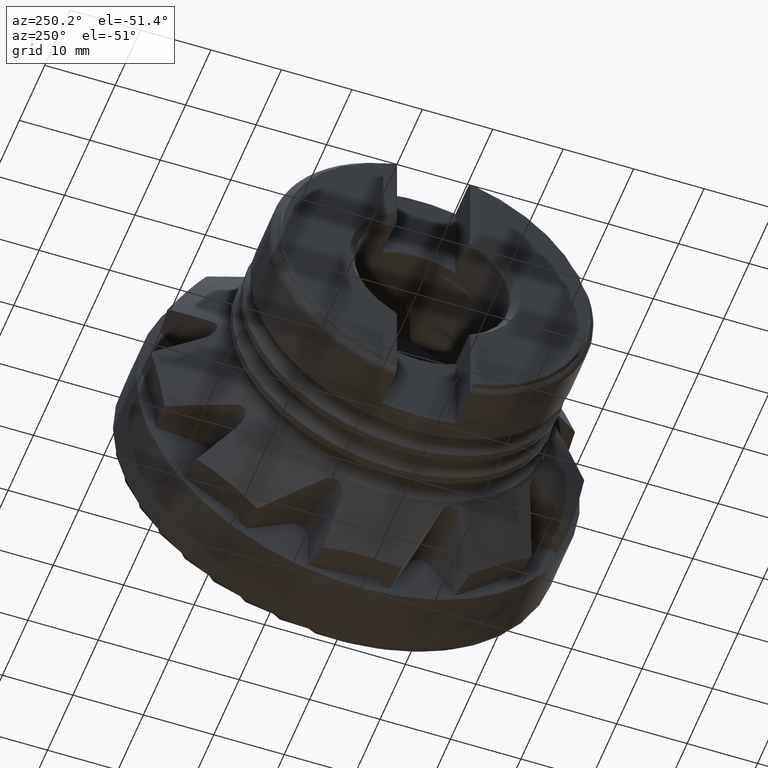
[diagram: clean part render]
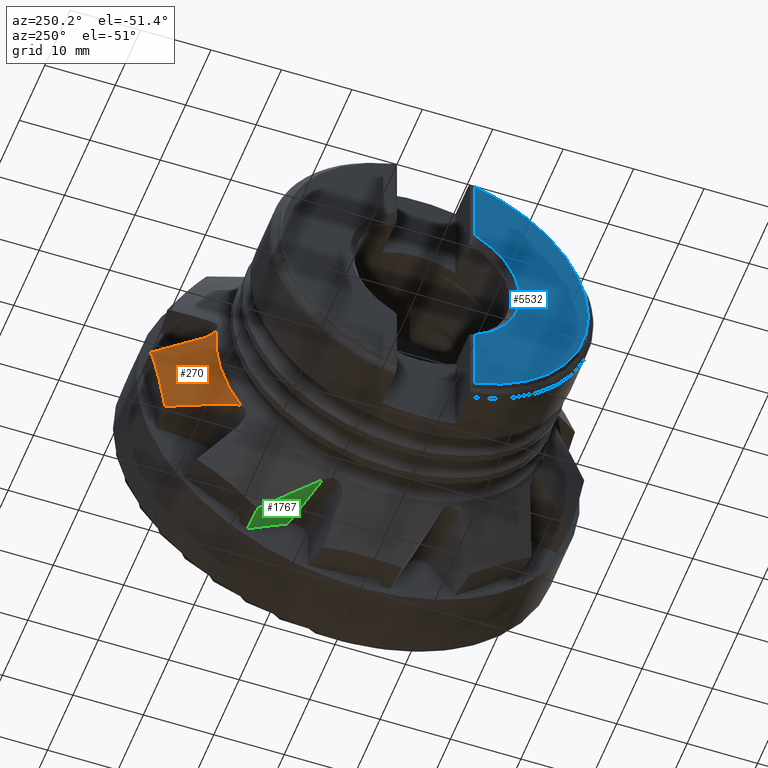
[diagram: same view with three faces highlighted in distinct colors, each labeled with its STEP entity id]
A machine part, auxiliary view with three faces highlighted in distinct colors.
Their STEP definitions:

[orange] entity #270 — the highlighted conical surface has half-angle 51.154 deg.
#114 = EDGE_CURVE ( 'NONE', #5348, #7015, #6651, .T. ) ;
#270 = ADVANCED_FACE ( 'NONE', ( #7688 ), #2080, .T. ) ;
#311 = CARTESIAN_POINT ( 'NONE',  ( -17.66959787476908500, 25.17829734405208000, 1.086551063214550100 ) ) ;
#324 = CARTESIAN_POINT ( 'NONE',  ( -14.61931886738449300, 28.96937569714186400, 1.076440430522797500 ) ) ;
#422 = CARTESIAN_POINT ( 'NONE',  ( -13.32014907429244100, 28.93695753550316900, -9.958091725751756900 ) ) ;
#576 = CARTESIAN_POINT ( 'NONE',  ( -18.84233078654614600, 20.09603200835191600, -12.64911970498729800 ) ) ;
#1154 = CARTESIAN_POINT ( 'NONE',  ( -17.66959787476908500, 25.17829734405208000, 1.086551063214550100 ) ) ;
#1384 = VERTEX_POINT ( 'NONE', #1387 ) ;
#1387 = CARTESIAN_POINT ( 'NONE',  ( -13.09395926139060700, 30.86473796035537000, 1.071463814680444500 ) ) ;
#1642 = CARTESIAN_POINT ( 'NONE',  ( -17.90058668098720000, 24.89052036032299100, 1.102926459477871400 ) ) ;
#1653 = CARTESIAN_POINT ( 'NONE',  ( -16.14456512270328800, 27.07392229764525700, 1.081457581260529600 ) ) ;
#1694 = CARTESIAN_POINT ( 'NONE',  ( -15.07512766053103800, 26.35042458129994700, -10.69062361715937800 ) ) ;
#1734 = B_SPLINE_CURVE_WITH_KNOTS ( 'NONE', 3,
 ( #5040, #324, #1653, #6385 ),
 .UNSPECIFIED., .F., .F.,
 ( 4, 4 ),
 ( 0.0001501825883151993500, 0.007448970379999481600 ),
 .UNSPECIFIED. ) ;
#1797 = CARTESIAN_POINT ( 'NONE',  ( -13.63573403927999200, 29.60809697731799900, -6.286606636422906300 ) ) ;
#1829 = CARTESIAN_POINT ( 'NONE',  ( -17.59482338654538900, 22.39917514444965700, -11.79324846321752300 ) ) ;
#2080 = CONICAL_SURFACE ( 'NONE', #3368, 30.99999999999995000, 0.8928056660857351900 ) ;
#2319 = CARTESIAN_POINT ( 'NONE',  ( -18.23954043297004200, 24.46352219300587200, 1.224791792716329400 ) ) ;
#2475 = CARTESIAN_POINT ( 'NONE',  ( -13.38889592127873800, 30.56222246018877800, -0.7701070809268794100 ) ) ;
#2555 = EDGE_CURVE ( 'NONE', #7015, #1384, #2748, .T. ) ;
#2748 = B_SPLINE_CURVE_WITH_KNOTS ( 'NONE', 3,
 ( #422, #8385, #1797, #6524, #2475, #7200 ),
 .UNSPECIFIED., .F., .F.,
 ( 4, 2, 4 ),
 ( 0.002204214959745007800, 0.007802588642851985200, 0.01340096232595896400 ),
 .UNSPECIFIED. ) ;
#2998 = CARTESIAN_POINT ( 'NONE',  ( -18.54787442368044700, 24.06670434245051400, 1.469061245818401100 ) ) ;
#3022 = DIRECTION ( 'NONE',  ( 1.000000000000000000, -0.0000000000000000000, -0.0000000000000000000 ) ) ;
#3228 = DIRECTION ( 'NONE',  ( 1.000000000000000000, -0.0000000000000000000, -0.0000000000000000000 ) ) ;
#3254 = DIRECTION ( 'NONE',  ( 0.0000000000000000000, 0.0000000000000000000, -1.000000000000000000 ) ) ;
#3368 = AXIS2_PLACEMENT_3D ( 'NONE', #7425, #3228, #3254 ) ;
#3400 = CARTESIAN_POINT ( 'NONE',  ( -18.79405007719356000, 20.24226921103871400, -12.52933023008295900 ) ) ;
#3424 = CARTESIAN_POINT ( 'NONE',  ( -18.57182344745039200, 20.72219626054023700, -12.26901575130061800 ) ) ;
#3668 = CARTESIAN_POINT ( 'NONE',  ( -18.79117833417380000, 23.73768188386161200, 1.849969901237294300 ) ) ;
#3846 = EDGE_CURVE ( 'NONE', #6656, #5348, #7749, .T. ) ;
#3964 = ORIENTED_EDGE ( 'NONE', *, *, #5759, .F. ) ;
#4108 = CARTESIAN_POINT ( 'NONE',  ( -18.38603016533242900, 21.05124192609381600, -12.16244247178529700 ) ) ;
#4123 = VERTEX_POINT ( 'NONE', #1154 ) ;
#4331 = CARTESIAN_POINT ( 'NONE',  ( -17.78568048082444600, 25.03400596118268600, 1.086938769418447600 ) ) ;
#4603 = CARTESIAN_POINT ( 'NONE',  ( -13.32014907429244100, 28.93695753550316900, -9.958091725751756900 ) ) ;
#4773 = EDGE_CURVE ( 'NONE', #6656, #7406, #7458, .T. ) ;
#4779 = ORIENTED_EDGE ( 'NONE', *, *, #114, .F. ) ;
#4883 = ORIENTED_EDGE ( 'NONE', *, *, #4773, .T. ) ;
#5013 = CARTESIAN_POINT ( 'NONE',  ( -13.32014907429244100, 28.93695753550316900, -9.958091725751756900 ) ) ;
#5040 = CARTESIAN_POINT ( 'NONE',  ( -13.09395926139060700, 30.86473796035537000, 1.071463814680444500 ) ) ;
#5108 = CARTESIAN_POINT ( 'NONE',  ( -18.84233078654615000, 23.66002862131616900, 2.013399471119087500 ) ) ;
#5144 = CARTESIAN_POINT ( 'NONE',  ( -16.76977452680699400, 23.72566674978357100, -11.42520291145168600 ) ) ;
#5348 = VERTEX_POINT ( 'NONE', #5741 ) ;
#5408 = ORIENTED_EDGE ( 'NONE', *, *, #2555, .F. ) ;
#5741 = CARTESIAN_POINT ( 'NONE',  ( -18.38603016533242900, 21.05124192609381600, -12.16244247178529700 ) ) ;
#5759 = EDGE_CURVE ( 'NONE', #4123, #7406, #6280, .T. ) ;
#5934 = CARTESIAN_POINT ( 'NONE',  ( -18.38603016533242900, 21.05124192609381600, -12.16244247178529700 ) ) ;
#6280 = B_SPLINE_CURVE_WITH_KNOTS ( 'NONE', 3,
 ( #311, #4331, #1642, #6375, #2319, #7054, #2998, #7740, #3668, #8430 ),
 .UNSPECIFIED., .F., .F.,
 ( 4, 2, 2, 2, 4 ),
 ( 0.01151497346002702600, 0.01206763359340422300, 0.01262029372678142100, 0.01317295386015861900, 0.01372561399353581500 ),
 .UNSPECIFIED. ) ;
#6375 = CARTESIAN_POINT ( 'NONE',  ( -18.12748563373366300, 24.60532610653324100, 1.171584447610106700 ) ) ;
#6385 = CARTESIAN_POINT ( 'NONE',  ( -17.66959787476908500, 25.17829734405208000, 1.086551063214550100 ) ) ;
#6524 = CARTESIAN_POINT ( 'NONE',  ( -13.55920157120005200, 30.25060752168489800, -2.610073500046050700 ) ) ;
#6651 = B_SPLINE_CURVE_WITH_KNOTS ( 'NONE', 3,
 ( #5934, #1829, #5144, #1694, #7355, #4603 ),
 .UNSPECIFIED., .F., .F.,
 ( 4, 2, 4 ),
 ( 0.0003303918202217912900, 0.005144610480655122500, 0.009958829141088450600 ),
 .UNSPECIFIED. ) ;
#6656 = VERTEX_POINT ( 'NONE', #576 ) ;
#7015 = VERTEX_POINT ( 'NONE', #5013 ) ;
#7030 = EDGE_CURVE ( 'NONE', #1384, #4123, #1734, .T. ) ;
#7054 = CARTESIAN_POINT ( 'NONE',  ( -18.44837789783676700, 24.19595907227687800, 1.372411558822956000 ) ) ;
#7072 = CARTESIAN_POINT ( 'NONE',  ( -18.84233078654614200, 0.0000000000000000000, 0.0000000000000000000 ) ) ;
#7200 = CARTESIAN_POINT ( 'NONE',  ( -13.09395926139060700, 30.86473796035537000, 1.071463814680444500 ) ) ;
#7355 = CARTESIAN_POINT ( 'NONE',  ( -14.20535203976762300, 27.64857827493740700, -10.32409590210699500 ) ) ;
#7386 = ORIENTED_EDGE ( 'NONE', *, *, #7030, .F. ) ;
#7406 = VERTEX_POINT ( 'NONE', #5108 ) ;
#7425 = CARTESIAN_POINT ( 'NONE',  ( -13.00000000000000000, 0.0000000000000000000, 0.0000000000000000000 ) ) ;
#7458 = CIRCLE ( 'NONE', #8461, 23.74554130340690300 ) ;
#7492 = ORIENTED_EDGE ( 'NONE', *, *, #3846, .F. ) ;
#7495 = CARTESIAN_POINT ( 'NONE',  ( -18.72683881329496800, 20.40170099333007100, -12.42880737828696200 ) ) ;
#7675 = EDGE_LOOP ( 'NONE', ( #7386, #5408, #4779, #7492, #4883, #3964 ) ) ;
#7688 = FACE_OUTER_BOUND ( 'NONE', #7675, .T. ) ;
#7740 = CARTESIAN_POINT ( 'NONE',  ( -18.71849700317090600, 23.83862426965358900, 1.706675803835415100 ) ) ;
#7749 = B_SPLINE_CURVE_WITH_KNOTS ( 'NONE', 3,
 ( #8156, #3400, #7495, #3424, #8179, #4108 ),
 .UNSPECIFIED., .F., .F.,
 ( 4, 2, 4 ),
 ( -0.01095209666788698700, -0.01036745069465012600, -0.009782804721413266800 ),
 .UNSPECIFIED. ) ;
#7761 = DIRECTION ( 'NONE',  ( 0.0000000000000000000, 0.0000000000000000000, -1.000000000000000000 ) ) ;
#8156 = CARTESIAN_POINT ( 'NONE',  ( -18.84233078654614600, 20.09603200835191600, -12.64911970498729800 ) ) ;
#8179 = CARTESIAN_POINT ( 'NONE',  ( -18.48302703700021600, 20.88599396702305500, -12.20770328707349600 ) ) ;
#8385 = CARTESIAN_POINT ( 'NONE',  ( -13.54191057461453300, 29.27719770025421300, -8.123172706348846400 ) ) ;
#8430 = CARTESIAN_POINT ( 'NONE',  ( -18.84233078654615000, 23.66002862131616900, 2.013399471119087500 ) ) ;
#8461 = AXIS2_PLACEMENT_3D ( 'NONE', #7072, #3022, #7761 ) ;

[blue] entity #5532 — the highlighted planar face has unit normal (-1, 0, 0).
#138 = CARTESIAN_POINT ( 'NONE',  ( -39.39999999999999900, -5.699999999999975300, 10.64498121181998700 ) ) ;
#186 = VECTOR ( 'NONE', #2949, 1000.000000000000000 ) ;
#457 = EDGE_LOOP ( 'NONE', ( #1547, #4908, #5935, #8683 ) ) ;
#503 = CARTESIAN_POINT ( 'NONE',  ( -39.39999999999999900, 0.0000000000000000000, 0.0000000000000000000 ) ) ;
#577 = EDGE_CURVE ( 'NONE', #5394, #978, #7383, .T. ) ;
#621 = DIRECTION ( 'NONE',  ( -1.000000000000000000, 0.0000000000000000000, 0.0000000000000000000 ) ) ;
#782 = CARTESIAN_POINT ( 'NONE',  ( -39.39999999999999900, -5.699999999999976200, -21.16043714104224400 ) ) ;
#978 = VERTEX_POINT ( 'NONE', #2550 ) ;
#1002 = FACE_OUTER_BOUND ( 'NONE', #457, .T. ) ;
#1178 = DIRECTION ( 'NONE',  ( 0.0000000000000000000, 0.0000000000000000000, 1.000000000000000000 ) ) ;
#1547 = ORIENTED_EDGE ( 'NONE', *, *, #3381, .T. ) ;
#1749 = CARTESIAN_POINT ( 'NONE',  ( -39.39999999999999900, -5.699999999999976200, -10.64498121181998700 ) ) ;
#1768 = AXIS2_PLACEMENT_3D ( 'NONE', #7475, #3410, #8167 ) ;
#2140 = CIRCLE ( 'NONE', #1768, 21.78999999999999900 ) ;
#2550 = CARTESIAN_POINT ( 'NONE',  ( -39.39999999999999900, -5.699999999999974400, -21.03126482168869400 ) ) ;
#2606 = PLANE ( 'NONE',  #8753 ) ;
#2880 = AXIS2_PLACEMENT_3D ( 'NONE', #503, #5223, #1178 ) ;
#2949 = DIRECTION ( 'NONE',  ( 0.0000000000000000000, 0.0000000000000000000, -1.000000000000000000 ) ) ;
#2981 = CIRCLE ( 'NONE', #2880, 12.07500000000001000 ) ;
#3381 = EDGE_CURVE ( 'NONE', #5176, #5394, #2981, .T. ) ;
#3410 = DIRECTION ( 'NONE',  ( 1.000000000000000000, 1.110223024625157000E-016, -0.0000000000000000000 ) ) ;
#4232 = VERTEX_POINT ( 'NONE', #5990 ) ;
#4908 = ORIENTED_EDGE ( 'NONE', *, *, #577, .T. ) ;
#5023 = LINE ( 'NONE', #8472, #8641 ) ;
#5065 = DIRECTION ( 'NONE',  ( 0.0000000000000000000, 0.0000000000000000000, -1.000000000000000000 ) ) ;
#5176 = VERTEX_POINT ( 'NONE', #138 ) ;
#5223 = DIRECTION ( 'NONE',  ( 1.000000000000000000, -0.0000000000000000000, -0.0000000000000000000 ) ) ;
#5330 = DIRECTION ( 'NONE',  ( 0.0000000000000000000, 0.0000000000000000000, 1.000000000000000000 ) ) ;
#5366 = EDGE_CURVE ( 'NONE', #4232, #5176, #5023, .T. ) ;
#5394 = VERTEX_POINT ( 'NONE', #1749 ) ;
#5532 = ADVANCED_FACE ( 'NONE', ( #1002 ), #2606, .T. ) ;
#5647 = EDGE_CURVE ( 'NONE', #4232, #978, #2140, .T. ) ;
#5935 = ORIENTED_EDGE ( 'NONE', *, *, #5647, .F. ) ;
#5990 = CARTESIAN_POINT ( 'NONE',  ( -39.39999999999999900, -5.699999999999976200, 21.03126482168869400 ) ) ;
#7383 = LINE ( 'NONE', #782, #186 ) ;
#7475 = CARTESIAN_POINT ( 'NONE',  ( -39.39999999999999900, -4.374278717023119000E-015, 0.0000000000000000000 ) ) ;
#8167 = DIRECTION ( 'NONE',  ( 0.0000000000000000000, 1.000000000000000000, 0.0000000000000000000 ) ) ;
#8472 = CARTESIAN_POINT ( 'NONE',  ( -39.39999999999999900, -5.699999999999976200, 10.89796425943857400 ) ) ;
#8641 = VECTOR ( 'NONE', #5065, 1000.000000000000000 ) ;
#8683 = ORIENTED_EDGE ( 'NONE', *, *, #5366, .T. ) ;
#8717 = CARTESIAN_POINT ( 'NONE',  ( -39.39999999999999900, 22.99999999999999600, 0.0000000000000000000 ) ) ;
#8753 = AXIS2_PLACEMENT_3D ( 'NONE', #8717, #621, #5330 ) ;

[green] entity #1767 — the highlighted planar face has unit normal (-0.099, 0.4658, 0.8793).
#295 = EDGE_CURVE ( 'NONE', #1075, #7793, #3401, .T. ) ;
#548 = AXIS2_PLACEMENT_3D ( 'NONE', #2453, #8678, #4606 ) ;
#564 = CARTESIAN_POINT ( 'NONE',  ( -9.413871065836934400, 13.92774842252594100, -24.81500187364325400 ) ) ;
#692 = EDGE_CURVE ( 'NONE', #3573, #7793, #6732, .T. ) ;
#886 = CARTESIAN_POINT ( 'NONE',  ( -13.32014907429077700, 15.76605754339594300, -26.22865859643710000 ) ) ;
#990 = VECTOR ( 'NONE', #3571, 999.9999999999998900 ) ;
#1075 = VERTEX_POINT ( 'NONE', #6056 ) ;
#1175 = CARTESIAN_POINT ( 'NONE',  ( -9.554655502254847800, 12.04256260950000600, -23.83220621016528900 ) ) ;
#1434 = ORIENTED_EDGE ( 'NONE', *, *, #692, .T. ) ;
#1630 = CARTESIAN_POINT ( 'NONE',  ( -18.38603016533243600, 8.308319573848466500, -22.84844894887228200 ) ) ;
#1702 = ORIENTED_EDGE ( 'NONE', *, *, #295, .F. ) ;
#1767 = ADVANCED_FACE ( 'NONE', ( #3423 ), #7205, .F. ) ;
#1791 = EDGE_LOOP ( 'NONE', ( #1702, #5249, #3033, #1434 ) ) ;
#2453 = CARTESIAN_POINT ( 'NONE',  ( -20.09108373159897800, 7.945899250339663500, -22.84844894887228200 ) ) ;
#2853 = CARTESIAN_POINT ( 'NONE',  ( -19.74781458057796300, 15.69177544746308500, -26.91305446028744800 ) ) ;
#2969 = B_SPLINE_CURVE_WITH_KNOTS ( 'NONE', 3,
 ( #4404, #3077, #7824, #3751, #8509, #4438 ),
 .UNSPECIFIED., .F., .F.,
 ( 4, 2, 4 ),
 ( 5.498990993288402500E-007, 0.004814761345487988800, 0.009628972791876648900 ),
 .UNSPECIFIED. ) ;
#3033 = ORIENTED_EDGE ( 'NONE', *, *, #4657, .T. ) ;
#3077 = CARTESIAN_POINT ( 'NONE',  ( -17.59478189848090300, 9.578276248254921300, -23.43209530435086000 ) ) ;
#3401 = B_SPLINE_CURVE_WITH_KNOTS ( 'NONE', 3,
 ( #5279, #1175, #564, #7319 ),
 .UNSPECIFIED., .F., .F.,
 ( 4, 4 ),
 ( 4.331639805568299100E-007, 0.006392356766630196000 ),
 .UNSPECIFIED. ) ;
#3423 = FACE_OUTER_BOUND ( 'NONE', #1791, .T. ) ;
#3571 = DIRECTION ( 'NONE',  ( 0.9781476007338083500, 0.2079116908177468800, -0.0000000000000000000 ) ) ;
#3573 = VERTEX_POINT ( 'NONE', #886 ) ;
#3751 = CARTESIAN_POINT ( 'NONE',  ( -15.07507111432936700, 13.31387672205131900, -25.12725568104823300 ) ) ;
#4265 = CARTESIAN_POINT ( 'NONE',  ( -9.268585129246558200, 15.81287993349430500, -25.79726190918007200 ) ) ;
#4404 = CARTESIAN_POINT ( 'NONE',  ( -18.38603016533243600, 8.308319573848466500, -22.84844894887228200 ) ) ;
#4438 = CARTESIAN_POINT ( 'NONE',  ( -13.32014907429077700, 15.76605754339594300, -26.22865859643710000 ) ) ;
#4606 = DIRECTION ( 'NONE',  ( 0.0000000000000000000, -0.8836699928212825600, 0.4681103970082640100 ) ) ;
#4657 = EDGE_CURVE ( 'NONE', #7329, #3573, #2969, .T. ) ;
#5249 = ORIENTED_EDGE ( 'NONE', *, *, #6436, .F. ) ;
#5279 = CARTESIAN_POINT ( 'NONE',  ( -9.687358521708246100, 10.15727930951362600, -22.84844894887228200 ) ) ;
#6056 = CARTESIAN_POINT ( 'NONE',  ( -9.687358521708246100, 10.15727930951362600, -22.84844894887228200 ) ) ;
#6436 = EDGE_CURVE ( 'NONE', #7329, #1075, #8181, .T. ) ;
#6732 = LINE ( 'NONE', #2853, #8555 ) ;
#6950 = CARTESIAN_POINT ( 'NONE',  ( -20.09108373159897800, 7.945899250339663500, -22.84844894887228200 ) ) ;
#7205 = PLANE ( 'NONE',  #548 ) ;
#7319 = CARTESIAN_POINT ( 'NONE',  ( -9.268585129246558200, 15.81287993349430500, -25.79726190918007200 ) ) ;
#7329 = VERTEX_POINT ( 'NONE', #1630 ) ;
#7793 = VERTEX_POINT ( 'NONE', #4265 ) ;
#7824 = CARTESIAN_POINT ( 'NONE',  ( -16.76971501976440100, 10.83102553636884300, -24.00281838954335400 ) ) ;
#8181 = LINE ( 'NONE', #6950, #990 ) ;
#8284 = DIRECTION ( 'NONE',  ( 0.9943134662198779300, 0.01149090415852840200, 0.1058711009455888100 ) ) ;
#8509 = CARTESIAN_POINT ( 'NONE',  ( -14.20531630447284100, 14.54388816105391800, -25.68090195022727300 ) ) ;
#8555 = VECTOR ( 'NONE', #8284, 1000.000000000000100 ) ;
#8678 = DIRECTION ( 'NONE',  ( -0.09901102723383228800, 0.4658102598947077000, 0.8793279355638181600 ) ) ;